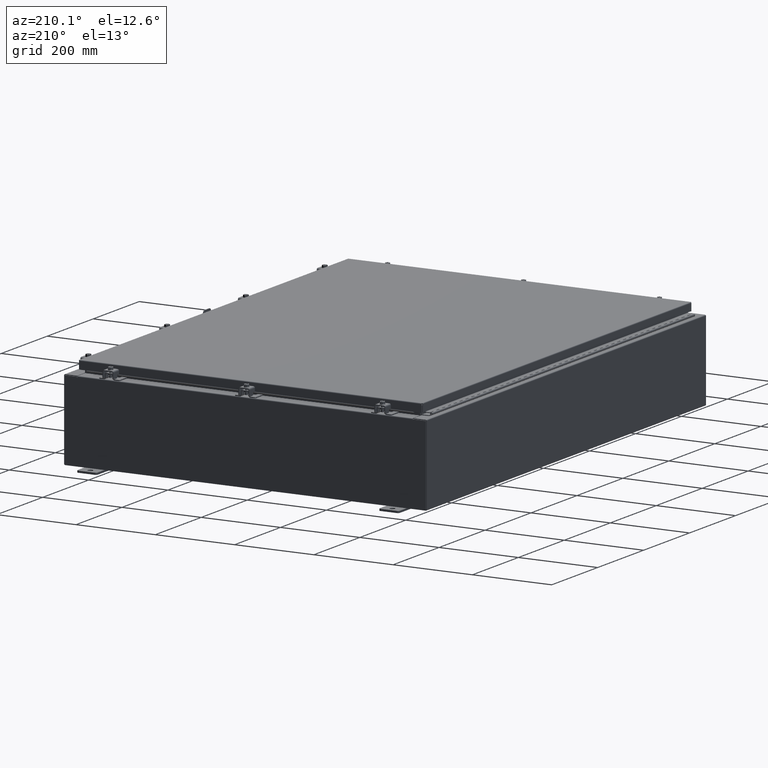
[diagram: clean part render]
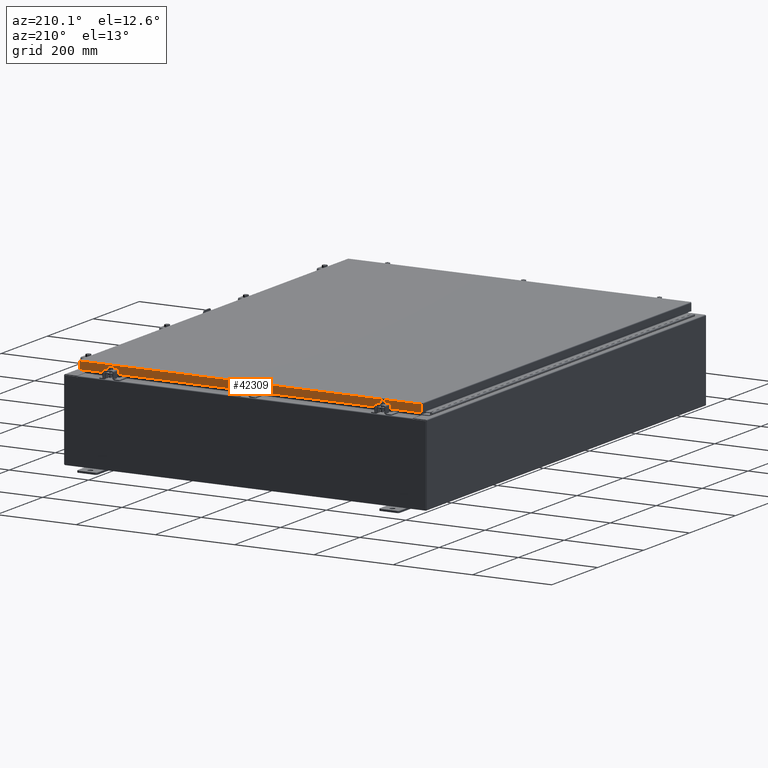
[diagram: same view with one face highlighted and labeled with its STEP entity id]
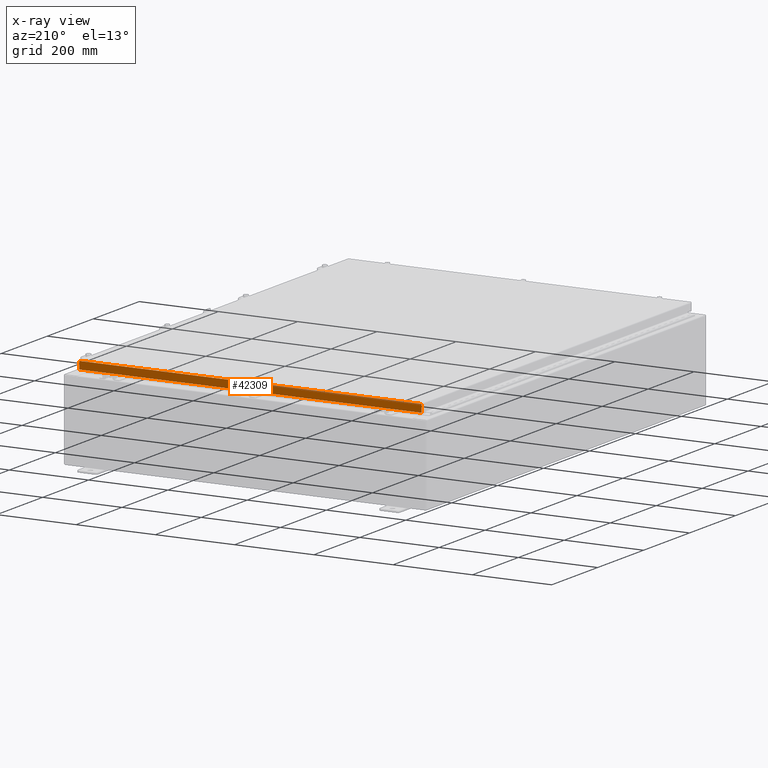
[diagram: x-ray of the same camera — body ghosted, the highlighted face saturated]
A machine part, auxiliary view. The second image highlights one B-rep face of the part: STEP entity #42309.
The next image is the same camera in x-ray: the body ghosted, the highlighted face saturated — about 0% of this face is hidden behind the body in this view.
In plain terms, the highlighted planar face has unit normal (0, -1, -0).
Its self-contained STEP definition (entity closure, byte-faithful):
#1696 = EDGE_CURVE ( 'NONE', #14305, #37038, #39783, .T. ) ;
#3268 = VECTOR ( 'NONE', #48577, 39.37007874015748100 ) ;
#3722 = DIRECTION ( 'NONE',  ( 6.989207801985677300E-031, -1.000000000000000000, -5.637761885544689500E-015 ) ) ;
#6007 = FACE_OUTER_BOUND ( 'NONE', #50884, .T. ) ;
#6518 = ORIENTED_EDGE ( 'NONE', *, *, #41734, .T. ) ;
#7338 = CARTESIAN_POINT ( 'NONE',  ( -17.07799999999999600, 23.09400000000000800, -0.8500000000000043100 ) ) ;
#8991 = VECTOR ( 'NONE', #54375, 39.37007874015748100 ) ;
#11677 = VERTEX_POINT ( 'NONE', #27345 ) ;
#12074 = EDGE_CURVE ( 'NONE', #30040, #52713, #14583, .T. ) ;
#12165 = DIRECTION ( 'NONE',  ( 1.000000000000000000, -0.0000000000000000000, -0.0000000000000000000 ) ) ;
#13605 = ORIENTED_EDGE ( 'NONE', *, *, #21030, .F. ) ;
#13670 = ORIENTED_EDGE ( 'NONE', *, *, #27823, .F. ) ;
#13930 = ORIENTED_EDGE ( 'NONE', *, *, #12074, .F. ) ;
#13965 = CARTESIAN_POINT ( 'NONE',  ( -16.98915786437626400, 23.09400000000000500, -0.08769999999999589200 ) ) ;
#14305 = VERTEX_POINT ( 'NONE', #13965 ) ;
#14583 = LINE ( 'NONE', #18694, #3268 ) ;
#16401 = CARTESIAN_POINT ( 'NONE',  ( 0.0000000000000000000, 23.09400000000000500, 1.300359644984189200E-013 ) ) ;
#17857 = CARTESIAN_POINT ( 'NONE',  ( -16.98915786437626400, 23.09400000000000800, -0.8500000000000043100 ) ) ;
#18694 = CARTESIAN_POINT ( 'NONE',  ( -17.07799999999999600, 23.09400000000000800, -0.8500000000000043100 ) ) ;
#19668 = CARTESIAN_POINT ( 'NONE',  ( 16.98915786437627100, 23.09400000000000500, -0.08769999999999589200 ) ) ;
#20376 = LINE ( 'NONE', #24488, #8991 ) ;
#20887 = EDGE_CURVE ( 'NONE', #37038, #11677, #32533, .T. ) ;
#21030 = EDGE_CURVE ( 'NONE', #11677, #30040, #28537, .T. ) ;
#21179 = DIRECTION ( 'NONE',  ( -0.0000000000000000000, 5.637761885544689500E-015, -1.000000000000000000 ) ) ;
#21214 = VECTOR ( 'NONE', #45800, 39.37007874015748100 ) ;
#24130 = DIRECTION ( 'NONE',  ( -1.000000000000000000, -6.989207801985679100E-031, -3.922586267643529200E-045 ) ) ;
#24488 = CARTESIAN_POINT ( 'NONE',  ( 16.98915786437627100, 23.09400000000000500, 1.300359644984189200E-013 ) ) ;
#25142 = AXIS2_PLACEMENT_3D ( 'NONE', #16401, #3722, #33559 ) ;
#25934 = VECTOR ( 'NONE', #24130, 39.37007874015748100 ) ;
#27345 = CARTESIAN_POINT ( 'NONE',  ( -16.23915786437625600, 23.09400000000000100, -0.8500000000000076400 ) ) ;
#27823 = EDGE_CURVE ( 'NONE', #49991, #14305, #37268, .T. ) ;
#28537 = LINE ( 'NONE', #46347, #49918 ) ;
#29271 = PLANE ( 'NONE',  #25142 ) ;
#30040 = VERTEX_POINT ( 'NONE', #36856 ) ;
#31044 = CARTESIAN_POINT ( 'NONE',  ( -16.98915786437626400, 23.09400000000000500, -0.07469999999999907300 ) ) ;
#31165 = ORIENTED_EDGE ( 'NONE', *, *, #20887, .F. ) ;
#32533 = LINE ( 'NONE', #7338, #21214 ) ;
#33559 = DIRECTION ( 'NONE',  ( 0.0000000000000000000, 5.637761885544689500E-015, -1.000000000000000000 ) ) ;
#36856 = CARTESIAN_POINT ( 'NONE',  ( 16.23915786437626400, 23.09400000000000100, -0.8500000000000076400 ) ) ;
#37038 = VERTEX_POINT ( 'NONE', #17857 ) ;
#37268 = LINE ( 'NONE', #45402, #25934 ) ;
#39783 = LINE ( 'NONE', #31044, #41105 ) ;
#41105 = VECTOR ( 'NONE', #21179, 39.37007874015748100 ) ;
#41317 = CARTESIAN_POINT ( 'NONE',  ( 16.98915786437627100, 23.09400000000000800, -0.8499999999999999800 ) ) ;
#41734 = EDGE_CURVE ( 'NONE', #49991, #52713, #20376, .T. ) ;
#42309 = ADVANCED_FACE ( 'NONE', ( #6007 ), #29271, .F. ) ;
#43939 = ORIENTED_EDGE ( 'NONE', *, *, #1696, .F. ) ;
#45402 = CARTESIAN_POINT ( 'NONE',  ( -17.07799999999999600, 23.09400000000000500, -0.08769999999999589200 ) ) ;
#45800 = DIRECTION ( 'NONE',  ( 1.000000000000000000, 8.758115402030108600E-047, 1.239713195391617600E-016 ) ) ;
#46347 = CARTESIAN_POINT ( 'NONE',  ( -16.23915786437625600, 23.09400000000000100, -0.8500000000000076400 ) ) ;
#48577 = DIRECTION ( 'NONE',  ( 1.000000000000000000, 8.758115402030108600E-047, 1.239713195391617600E-016 ) ) ;
#49918 = VECTOR ( 'NONE', #12165, 39.37007874015748100 ) ;
#49991 = VERTEX_POINT ( 'NONE', #19668 ) ;
#50884 = EDGE_LOOP ( 'NONE', ( #13670, #6518, #13930, #13605, #31165, #43939 ) ) ;
#52713 = VERTEX_POINT ( 'NONE', #41317 ) ;
#54375 = DIRECTION ( 'NONE',  ( 0.0000000000000000000, 5.637761885544689500E-015, -1.000000000000000000 ) ) ;